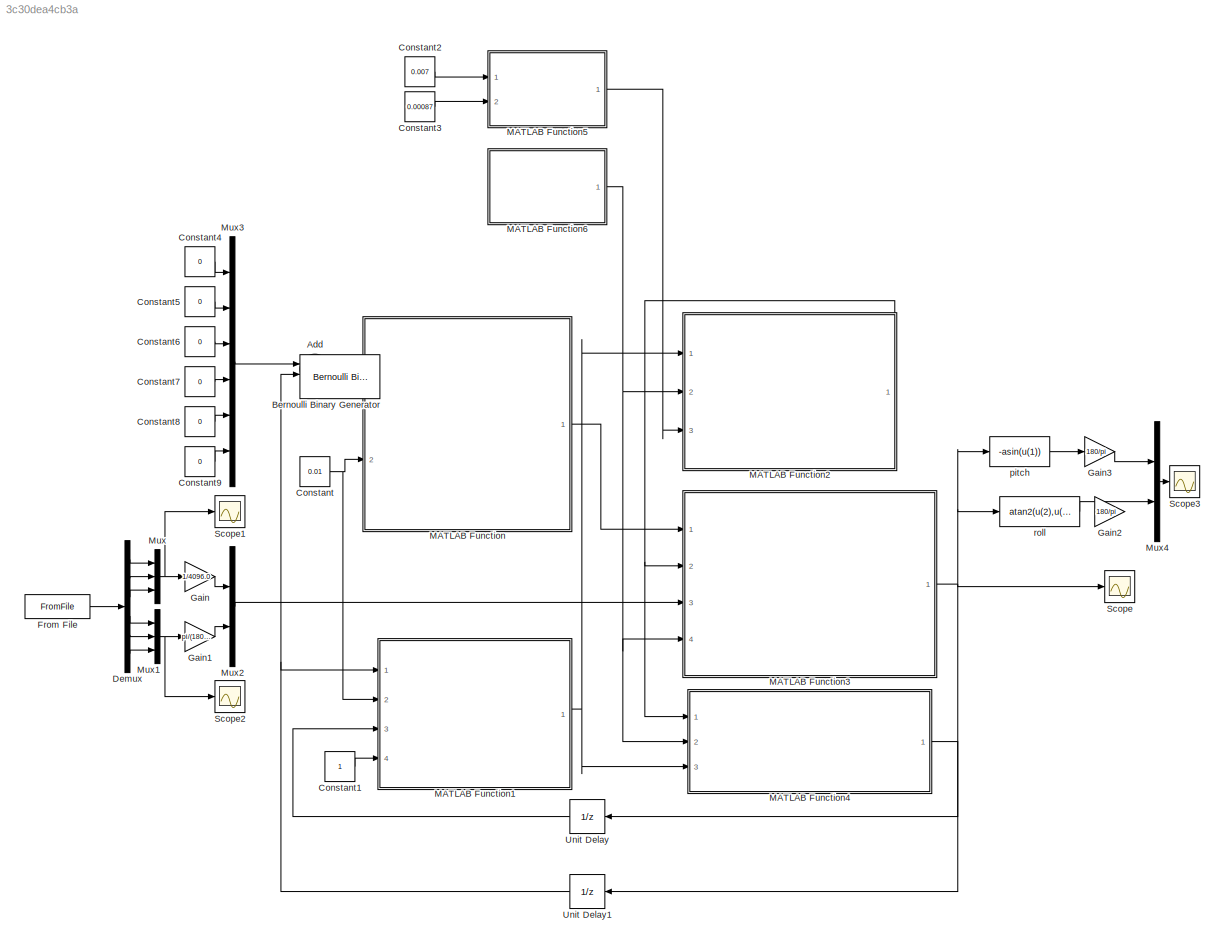
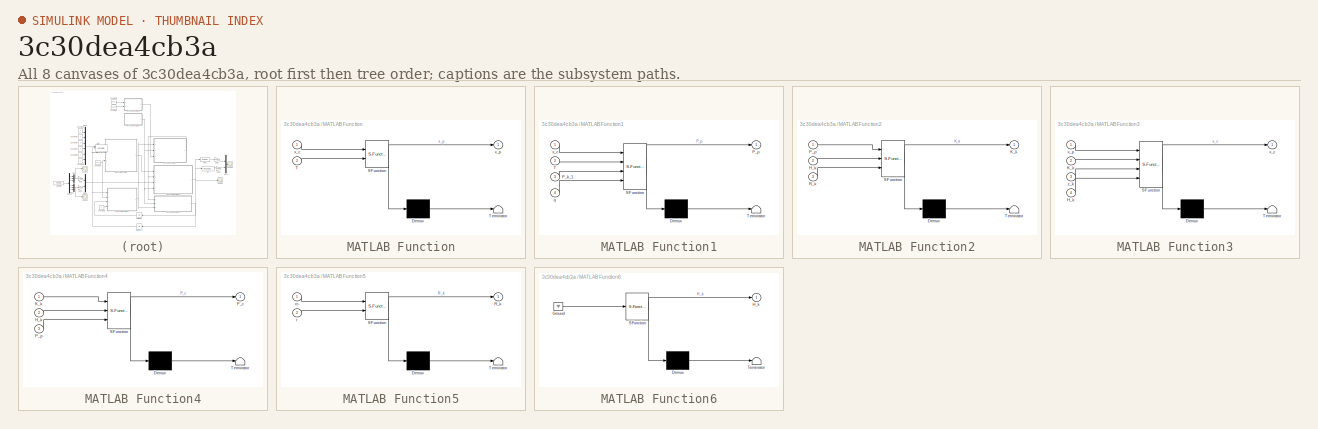
[diagram: thumbnail index - all 8 canvases of the model, root first then tree order]
MODEL slx_3c30dea4cb3a
KIND model
CONFIG AbsTol = auto
CONFIG FixedStep = auto
CONFIG MaxStep = auto
CONFIG MinStep = auto
CONFIG RelTol = 1e-3
CONFIG SampleTimeConstraint = Unconstrained
CONFIG Solver = VariableStepAuto
CONFIG SolverMode = Auto
CONFIG SolverName = VariableStepAuto
CONFIG StartTime = 0.0
CONFIG StopTime = 10
BLOCK [Sum] Add
  InputSameDT = off
  OutDataTypeStr = Inherit: Inherit via internal rule
  Ports = [2, 1]
  SaturateOnIntegerOverflow = off
BLOCK [Reference] Bernoulli Binary Generator  REF=commrandsrc3/Bernoulli Binary
Generator
  IOType = siggen
  Ports = [0, 1]
  SourceBlock = commrandsrc3/Bernoulli Binary\nGenerator
  SourceType = Bernoulli Binary Generator
BLOCK [Constant] Constant
  Value = 0.01
BLOCK [Constant] Constant1
BLOCK [Constant] Constant2
  Value = 0.007
BLOCK [Constant] Constant3
  Value = 0.00087
BLOCK [Constant] Constant4
  Value = 0
BLOCK [Constant] Constant5
  Value = 0
BLOCK [Constant] Constant6
  Value = 0
BLOCK [Constant] Constant7
  Value = 0
BLOCK [Constant] Constant8
  Value = 0
BLOCK [Constant] Constant9
  Value = 0
BLOCK [Demux] Demux
  DisplayOption = bar
  Outputs = 6
  Ports = [1, 6]
BLOCK [FromFile] From File
  FileName = data
  SampleTime = 0.01
BLOCK [Gain] Gain
  Gain = 1/4096.0
  OutDataTypeStr = Inherit: Inherit via internal rule
  ParamDataTypeStr = Inherit: Inherit via internal rule
  SaturateOnIntegerOverflow = off
BLOCK [Gain] Gain1
  Gain = pi/(180*8)
  OutDataTypeStr = Inherit: Inherit via internal rule
  ParamDataTypeStr = Inherit: Inherit via internal rule
  SaturateOnIntegerOverflow = off
BLOCK [Gain] Gain2
  Gain = 180/pi
  OutDataTypeStr = Inherit: Inherit via internal rule
  ParamDataTypeStr = Inherit: Inherit via internal rule
  SaturateOnIntegerOverflow = off
BLOCK [Gain] Gain3
  Gain = 180/pi
  OutDataTypeStr = Inherit: Inherit via internal rule
  ParamDataTypeStr = Inherit: Inherit via internal rule
  SaturateOnIntegerOverflow = off
BLOCK [SubSystem] MATLAB Function
  ErrorFcn = Stateflow.Translate.translate
  InitFcn = x_c=[0 0 0 0 0 0 ]'
  PermitHierarchicalResolution = ExplicitOnly
  Ports = [2, 1]
  RequestExecContextInheritance = off
  SFBlockType = MATLAB Function
  TreatAsAtomicUnit = on
  Variant = off
BLOCK [Demux] MATLAB Function/ Demux 
  Outputs = 1
  Ports = [1, 1]
BLOCK [S-Function] MATLAB Function/ SFunction 
  EnableBusSupport = on
  FunctionName = sf_sfun
  PortCounts = [2 2]
  Ports = [2, 2]
  SFunctionDeploymentMode = off
  Tag = Stateflow S-Function kalmanHung 2
BLOCK [Terminator] MATLAB Function/ Terminator 
BLOCK [Inport] MATLAB Function/T
  IconDisplay = Port number
  Port = 2
BLOCK [Inport] MATLAB Function/x_c
  IconDisplay = Port number
BLOCK [Outport] MATLAB Function/x_p
  IconDisplay = Port number
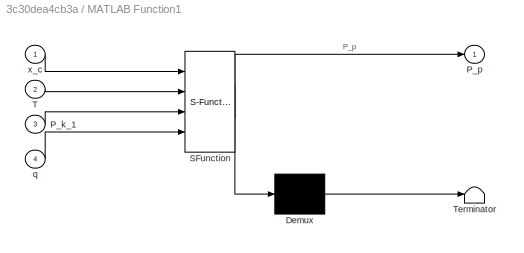
BLOCK [SubSystem] MATLAB Function1
  ErrorFcn = Stateflow.Translate.translate
  PermitHierarchicalResolution = ExplicitOnly
  Ports = [4, 1]
  RequestExecContextInheritance = off
  SFBlockType = MATLAB Function
  TreatAsAtomicUnit = on
  Variant = off
BLOCK [Demux] MATLAB Function1/ Demux 
  Outputs = 1
  Ports = [1, 1]
BLOCK [S-Function] MATLAB Function1/ SFunction 
  EnableBusSupport = on
  FunctionName = sf_sfun
  PortCounts = [4 2]
  Ports = [4, 2]
  SFunctionDeploymentMode = off
  Tag = Stateflow S-Function kalmanHung 1
BLOCK [Terminator] MATLAB Function1/ Terminator 
BLOCK [Inport] MATLAB Function1/P_k_1
  IconDisplay = Port number
  Port = 3
BLOCK [Outport] MATLAB Function1/P_p
  IconDisplay = Port number
BLOCK [Inport] MATLAB Function1/T
  IconDisplay = Port number
  Port = 2
BLOCK [Inport] MATLAB Function1/q
  IconDisplay = Port number
  Port = 4
BLOCK [Inport] MATLAB Function1/x_c
  IconDisplay = Port number
BLOCK [SubSystem] MATLAB Function2
  ErrorFcn = Stateflow.Translate.translate
  PermitHierarchicalResolution = ExplicitOnly
  Ports = [3, 1]
  RequestExecContextInheritance = off
  SFBlockType = MATLAB Function
  TreatAsAtomicUnit = on
  Variant = off
BLOCK [Demux] MATLAB Function2/ Demux 
  Outputs = 1
  Ports = [1, 1]
BLOCK [S-Function] MATLAB Function2/ SFunction 
  EnableBusSupport = on
  FunctionName = sf_sfun
  PortCounts = [3 2]
  Ports = [3, 2]
  SFunctionDeploymentMode = off
  Tag = Stateflow S-Function kalmanHung 3
BLOCK [Terminator] MATLAB Function2/ Terminator 
BLOCK [Inport] MATLAB Function2/H_k
  IconDisplay = Port number
  Port = 2
BLOCK [Outport] MATLAB Function2/K_k
  IconDisplay = Port number
BLOCK [Inport] MATLAB Function2/P_p
  IconDisplay = Port number
BLOCK [Inport] MATLAB Function2/R_k
  IconDisplay = Port number
  Port = 3
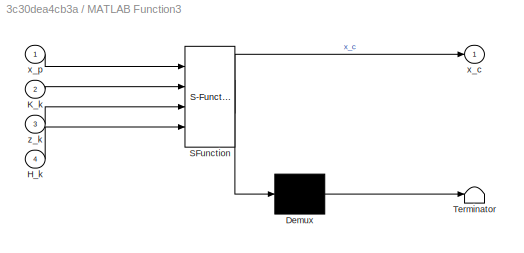
BLOCK [SubSystem] MATLAB Function3
  ErrorFcn = Stateflow.Translate.translate
  PermitHierarchicalResolution = ExplicitOnly
  Ports = [4, 1]
  RequestExecContextInheritance = off
  SFBlockType = MATLAB Function
  TreatAsAtomicUnit = on
  Variant = off
BLOCK [Demux] MATLAB Function3/ Demux 
  Outputs = 1
  Ports = [1, 1]
BLOCK [S-Function] MATLAB Function3/ SFunction 
  EnableBusSupport = on
  FunctionName = sf_sfun
  PortCounts = [4 2]
  Ports = [4, 2]
  SFunctionDeploymentMode = off
  Tag = Stateflow S-Function kalmanHung 4
BLOCK [Terminator] MATLAB Function3/ Terminator 
BLOCK [Inport] MATLAB Function3/H_k
  IconDisplay = Port number
  Port = 4
BLOCK [Inport] MATLAB Function3/K_k
  IconDisplay = Port number
  Port = 2
BLOCK [Outport] MATLAB Function3/x_c
  IconDisplay = Port number
BLOCK [Inport] MATLAB Function3/x_p
  IconDisplay = Port number
BLOCK [Inport] MATLAB Function3/z_k
  IconDisplay = Port number
  Port = 3
BLOCK [SubSystem] MATLAB Function4
  ErrorFcn = Stateflow.Translate.translate
  PermitHierarchicalResolution = ExplicitOnly
  Ports = [3, 1]
  RequestExecContextInheritance = off
  SFBlockType = MATLAB Function
  TreatAsAtomicUnit = on
  Variant = off
BLOCK [Demux] MATLAB Function4/ Demux 
  Outputs = 1
  Ports = [1, 1]
BLOCK [S-Function] MATLAB Function4/ SFunction 
  EnableBusSupport = on
  FunctionName = sf_sfun
  PortCounts = [3 2]
  Ports = [3, 2]
  SFunctionDeploymentMode = off
  Tag = Stateflow S-Function kalmanHung 5
BLOCK [Terminator] MATLAB Function4/ Terminator 
BLOCK [Inport] MATLAB Function4/H_k
  IconDisplay = Port number
  Port = 2
BLOCK [Inport] MATLAB Function4/K_k
  IconDisplay = Port number
BLOCK [Outport] MATLAB Function4/P_c
  IconDisplay = Port number
BLOCK [Inport] MATLAB Function4/P_p
  IconDisplay = Port number
  Port = 3
BLOCK [SubSystem] MATLAB Function5
  ErrorFcn = Stateflow.Translate.translate
  PermitHierarchicalResolution = ExplicitOnly
  Ports = [2, 1]
  RequestExecContextInheritance = off
  SFBlockType = MATLAB Function
  TreatAsAtomicUnit = on
  Variant = off
BLOCK [Demux] MATLAB Function5/ Demux 
  Outputs = 1
  Ports = [1, 1]
BLOCK [S-Function] MATLAB Function5/ SFunction 
  EnableBusSupport = on
  FunctionName = sf_sfun
  PortCounts = [2 2]
  Ports = [2, 2]
  SFunctionDeploymentMode = off
  Tag = Stateflow S-Function kalmanHung 6
BLOCK [Terminator] MATLAB Function5/ Terminator 
BLOCK [Outport] MATLAB Function5/R_k
  IconDisplay = Port number
BLOCK [Inport] MATLAB Function5/m
  IconDisplay = Port number
BLOCK [Inport] MATLAB Function5/r
  IconDisplay = Port number
  Port = 2
BLOCK [SubSystem] MATLAB Function6
  ErrorFcn = Stateflow.Translate.translate
  PermitHierarchicalResolution = ExplicitOnly
  Ports = [0, 1]
  RequestExecContextInheritance = off
  SFBlockType = MATLAB Function
  TreatAsAtomicUnit = on
  Variant = off
BLOCK [Demux] MATLAB Function6/ Demux 
  Outputs = 1
  Ports = [1, 1]
BLOCK [Ground] MATLAB Function6/ Ground 
BLOCK [S-Function] MATLAB Function6/ SFunction 
  EnableBusSupport = on
  FunctionName = sf_sfun
  PortCounts = [1 2]
  Ports = [1, 2]
  SFunctionDeploymentMode = off
  Tag = Stateflow S-Function kalmanHung 7
BLOCK [Terminator] MATLAB Function6/ Terminator 
BLOCK [Outport] MATLAB Function6/H_k
  IconDisplay = Port number
BLOCK [Mux] Mux
  DisplayOption = bar
  Inputs = 3
  Ports = [3, 1]
BLOCK [Mux] Mux1
  DisplayOption = bar
  Inputs = 3
  Ports = [3, 1]
BLOCK [Mux] Mux2
  DisplayOption = bar
  Inputs = 2
  Ports = [2, 1]
BLOCK [Mux] Mux3
  DisplayOption = bar
  Inputs = 6
  Ports = [6, 1]
BLOCK [Mux] Mux4
  DisplayOption = bar
  Inputs = 2
  Ports = [2, 1]
BLOCK [Scope] Scope
  Ports = [1]
  ScopeSpecificationString = Simulink.scopes.TimeScopeBlockCfg('CurrentConfiguration', extmgr.ConfigurationSet(extmgr.Configuration('Core','General UI',true),extmgr.Configuration('Core','Source UI',true),extmgr.Configuration('Sources','WiredSimulink',true),extmgr.Configuration('Visuals','Time Domain',true,'SerializedDisplays',{struct('MinYLimReal','-0.01987','MaxYLimReal','0.01837','YLabelReal','','MinYLimMag','0.00000','MaxY...<+1470ch>
BLOCK [Scope] Scope1
  Ports = [1]
  ScopeSpecificationString = Simulink.scopes.TimeScopeBlockCfg('CurrentConfiguration', extmgr.ConfigurationSet(extmgr.Configuration('Core','General UI',true),extmgr.Configuration('Core','Source UI',true),extmgr.Configuration('Sources','WiredSimulink',true,'DataLoggingVariableName','ScopeData1'),extmgr.Configuration('Visuals','Time Domain',true,'SerializedDisplays',{struct('MinYLimReal','-883.25','MaxYLimReal','4829.25','YLabe...<+1438ch>
BLOCK [Scope] Scope2
  Ports = [1]
  ScopeSpecificationString = Simulink.scopes.TimeScopeBlockCfg('CurrentConfiguration', extmgr.ConfigurationSet(extmgr.Configuration('Core','General UI',true),extmgr.Configuration('Core','Source UI',true),extmgr.Configuration('Sources','WiredSimulink',true,'DataLoggingVariableName','ScopeData2'),extmgr.Configuration('Visuals','Time Domain',true,'SerializedDisplays',{struct('MinYLimReal','-801.00000','MaxYLimReal','359.00000','...<+1452ch>
BLOCK [Scope] Scope3
  Ports = [1]
  ScopeSpecificationString = Simulink.scopes.TimeScopeBlockCfg('CurrentConfiguration', extmgr.ConfigurationSet(extmgr.Configuration('Core','General UI',true),extmgr.Configuration('Core','Source UI',true),extmgr.Configuration('Sources','WiredSimulink',true,'DataLoggingVariableName','ScopeData1'),extmgr.Configuration('Visuals','Time Domain',true,'SerializedDisplays',{struct('MinYLimReal','-112.5','MaxYLimReal','112.5','YLabelRe...<+1413ch>
BLOCK [UnitDelay] Unit Delay
  InitialCondition = eye(6,6)
  InputProcessing = Elements as channels (sample based)
  SampleTime = -1
BLOCK [UnitDelay] Unit Delay1
  InitialCondition = zeros(6,1)
  InputProcessing = Elements as channels (sample based)
  SampleTime = -1
BLOCK [Fcn] pitch
  Expr = -asin(u(1))
BLOCK [Fcn] roll
  Expr = atan2(u(2),u(3))
LINE Add:1 -> MATLAB Function:1
LINE Constant1:1 -> MATLAB Function1:4
LINE Constant2:1 -> MATLAB Function5:1
LINE Constant3:1 -> MATLAB Function5:2
LINE Constant4:1 -> Mux3:1
LINE Constant5:1 -> Mux3:2
LINE Constant6:1 -> Mux3:3
LINE Constant7:1 -> Mux3:4
LINE Constant8:1 -> Mux3:5
LINE Constant9:1 -> Mux3:6
NET Constant:1 -> MATLAB Function1:2, MATLAB Function:2
LINE Demux:1 -> Mux:1
LINE Demux:2 -> Mux:2
LINE Demux:3 -> Mux:3
LINE Demux:4 -> Mux1:1
LINE Demux:5 -> Mux1:2
LINE Demux:6 -> Mux1:3
LINE From File:1 -> Demux:1
LINE Gain1:1 -> Mux2:2
LINE Gain3:1 -> Mux4:1
LINE Gain:1 -> Mux2:1
NET MATLAB Function1:1 -> MATLAB Function2:1, MATLAB Function4:3
NET MATLAB Function2:1 -> MATLAB Function3:2, MATLAB Function4:1
NET MATLAB Function3:1 -> Scope:1, Unit Delay1:1, pitch:1, roll:1
LINE MATLAB Function4:1 -> Unit Delay:1
LINE MATLAB Function5:1 -> MATLAB Function2:3
NET MATLAB Function6:1 -> MATLAB Function2:2, MATLAB Function3:4, MATLAB Function4:2
LINE MATLAB Function:1 -> MATLAB Function3:1
NET Mux1:1 -> Gain1:1, Scope2:1
LINE Mux2:1 -> MATLAB Function3:3
LINE Mux3:1 -> Add:1
LINE Mux4:1 -> Scope3:1
NET Mux:1 -> Gain:1, Scope1:1
NET Unit Delay1:1 -> Add:2, MATLAB Function1:1
LINE Unit Delay:1 -> MATLAB Function1:3
LINE pitch:1 -> Gain3:1
LINE roll:1 -> Mux4:2
note: NET lines group one-source signal fan-out (src -> all destinations, sorted); 1:1 wires keep LINE
CHART MATLAB Function1 states=1 transitions=1
  STATE_LABEL 'eML_blk_kernel()'
  STATE_LABEL "SCRIPT:\nfunction P_p=Predict_P(x_c,T,P_k_1,q)% x_p: x predicted, x_c: x_corrected\nC3=[0,-x_c(3),x_c(2);x_c(3),0,-x_c(1);-x_c(2),x_c(1),0];\nAk=[eye(3,3),T*C3;zeros(3,3),eye(3,3)];\nQk=q*[T^3*C3*C3',T^2*C3;T^2*C3',T*eye(3,3)];\nP_p=Ak*P_k_1*Ak'+Qk;\nend"
CHART MATLAB Function states=1 transitions=1
  STATE_LABEL 'eML_blk_kernel()'
  STATE_LABEL 'SCRIPT:\nfunction x_p=Predict_x(x_c,T)% x_p: x predicted, x_c: x_corrected\nC3=[0,-x_c(3),x_c(2);x_c(3),0,-x_c(1);-x_c(2),x_c(1),0];\nAk=[eye(3,3),T*C3;zeros(3,3),eye(3,3)];\nx_p=Ak*x_c;\nend'
CHART MATLAB Function2 states=1 transitions=1
  STATE_LABEL 'eML_blk_kernel()'
  STATE_LABEL "SCRIPT:\nfunction K_k=K_gain(P_p,H_k,R_k)\nK_k=P_p*H_k'*(H_k*P_p*H_k'+R_k);\nend"
CHART MATLAB Function3 states=1 transitions=1
  STATE_LABEL 'eML_blk_kernel()'
  STATE_LABEL 'SCRIPT:\nfunction x_c=Correct_x(x_p,K_k,z_k,H_k)\nx_c=x_p+K_k*(z_k-H_k*x_p);\nend'
CHART MATLAB Function4 states=1 transitions=1
  STATE_LABEL 'eML_blk_kernel()'
  STATE_LABEL 'SCRIPT:\nfunction P_c= Correct_P(K_k,H_k,P_p)\nP_c=(eye(6,6)-K_k*H_k)*P_p;\nend'
CHART MATLAB Function5 states=1 transitions=1
  STATE_LABEL 'eML_blk_kernel()'
  STATE_LABEL 'SCRIPT:\nfunction R_k = Create_R(m,r)\n%#codegen\nR_k=[m*eye(3,3),zeros(3,3);zeros(3,3),r*eye(3,3)];'
CHART MATLAB Function6 states=1 transitions=1
  STATE_LABEL 'eML_blk_kernel()'
  STATE_LABEL 'SCRIPT:\nfunction H_k = Create_H()\n%#codegen\n\nH_k=eye(6,6);'
